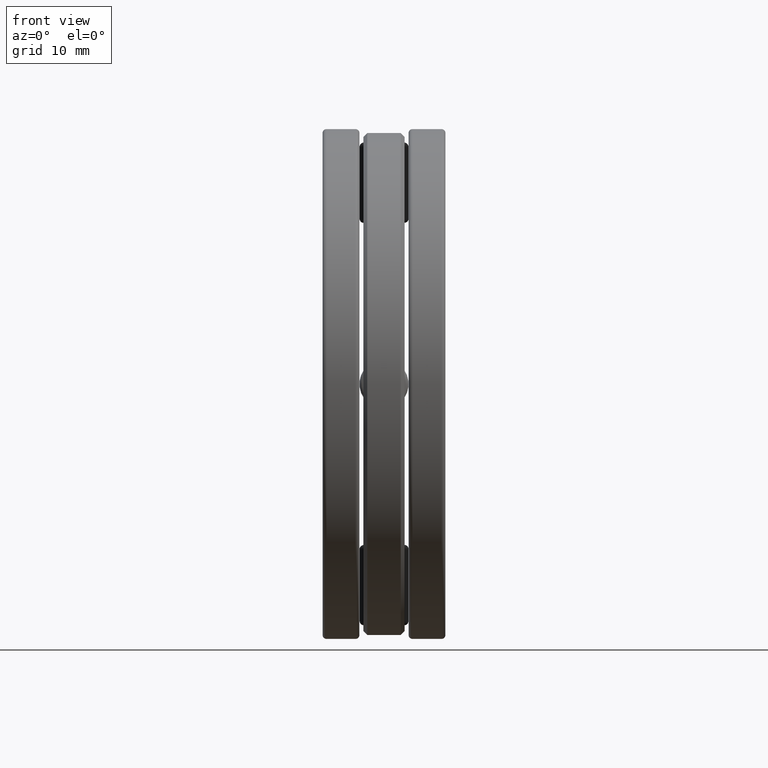
[diagram: clean part render]
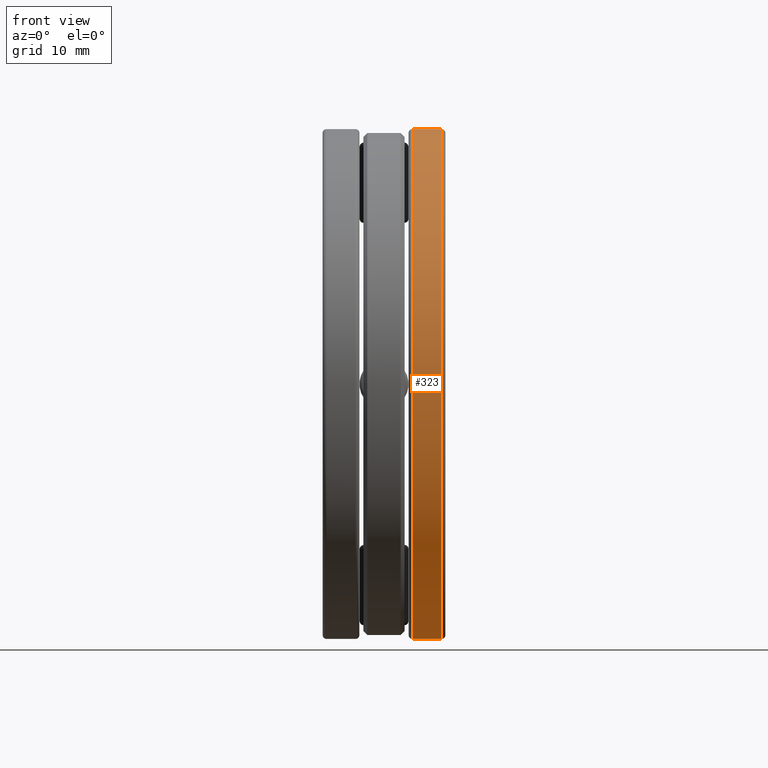
[diagram: same view with one face highlighted and labeled with its STEP entity id]
A machine part, front view. The second image highlights one B-rep face of the part: STEP entity #323.
In plain terms, the highlighted cylindrical surface (bore or boss wall) has radius 32.9406 mm, axis along (-1, -0, -0).
Its self-contained STEP definition (entity closure, byte-faithful):
#11 = EDGE_CURVE ( 'NONE', #966, #966, #319, .T. ) ;
#50 = AXIS2_PLACEMENT_3D ( 'NONE', #856, #1294, #1413 ) ;
#54 = CARTESIAN_POINT ( 'NONE',  ( 0.2925000000000000900, 0.0000000000000000000, 1.296875000000000400 ) ) ;
#68 = AXIS2_PLACEMENT_3D ( 'NONE', #1019, #683, #227 ) ;
#106 = CARTESIAN_POINT ( 'NONE',  ( 0.0000000000000000000, 0.0000000000000000000, 0.0000000000000000000 ) ) ;
#167 = FACE_OUTER_BOUND ( 'NONE', #392, .T. ) ;
#227 = DIRECTION ( 'NONE',  ( 0.0000000000000000000, 0.0000000000000000000, 1.000000000000000000 ) ) ;
#229 = CYLINDRICAL_SURFACE ( 'NONE', #849, 1.296875000000000400 ) ;
#319 = CIRCLE ( 'NONE', #50, 1.296875000000000400 ) ;
#323 = ADVANCED_FACE ( 'NONE', ( #167, #701 ), #229, .T. ) ;
#343 = EDGE_CURVE ( 'NONE', #860, #860, #1020, .T. ) ;
#350 = ORIENTED_EDGE ( 'NONE', *, *, #11, .F. ) ;
#392 = EDGE_LOOP ( 'NONE', ( #350 ) ) ;
#421 = ORIENTED_EDGE ( 'NONE', *, *, #343, .T. ) ;
#432 = DIRECTION ( 'NONE',  ( 0.0000000000000000000, 0.0000000000000000000, 1.000000000000000000 ) ) ;
#446 = DIRECTION ( 'NONE',  ( -1.000000000000000000, -0.0000000000000000000, -0.0000000000000000000 ) ) ;
#683 = DIRECTION ( 'NONE',  ( -1.000000000000000000, -0.0000000000000000000, -0.0000000000000000000 ) ) ;
#701 = FACE_OUTER_BOUND ( 'NONE', #1152, .T. ) ;
#842 = CARTESIAN_POINT ( 'NONE',  ( 0.1449999999999999300, 0.0000000000000000000, 1.296875000000000400 ) ) ;
#849 = AXIS2_PLACEMENT_3D ( 'NONE', #106, #446, #432 ) ;
#856 = CARTESIAN_POINT ( 'NONE',  ( 0.1449999999999999300, 0.0000000000000000000, 0.0000000000000000000 ) ) ;
#860 = VERTEX_POINT ( 'NONE', #54 ) ;
#966 = VERTEX_POINT ( 'NONE', #842 ) ;
#1019 = CARTESIAN_POINT ( 'NONE',  ( 0.2925000000000000900, 0.0000000000000000000, 0.0000000000000000000 ) ) ;
#1020 = CIRCLE ( 'NONE', #68, 1.296875000000000400 ) ;
#1152 = EDGE_LOOP ( 'NONE', ( #421 ) ) ;
#1294 = DIRECTION ( 'NONE',  ( -1.000000000000000000, -0.0000000000000000000, -0.0000000000000000000 ) ) ;
#1413 = DIRECTION ( 'NONE',  ( 0.0000000000000000000, 0.0000000000000000000, 1.000000000000000000 ) ) ;